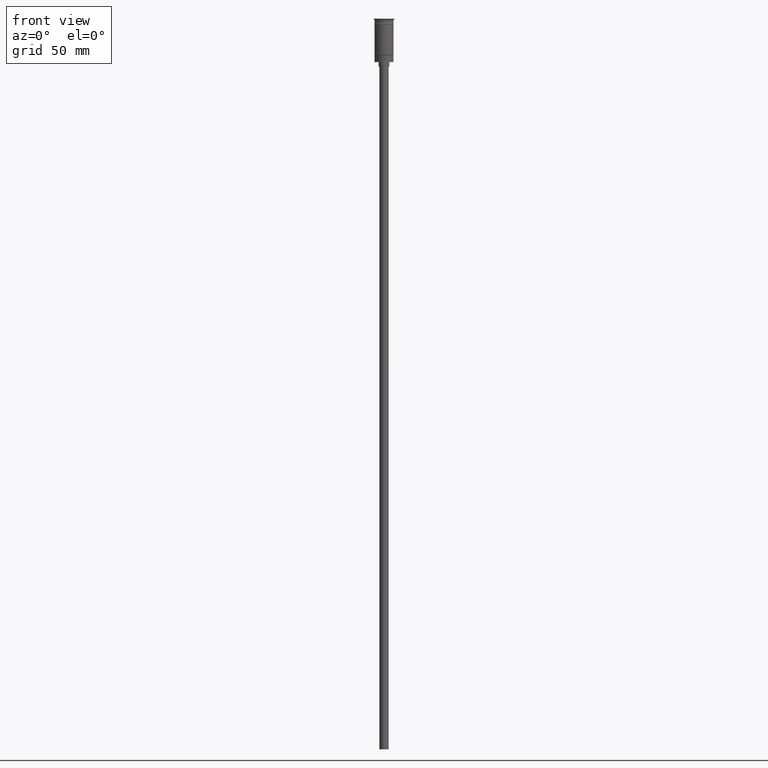
[diagram: clean part render]
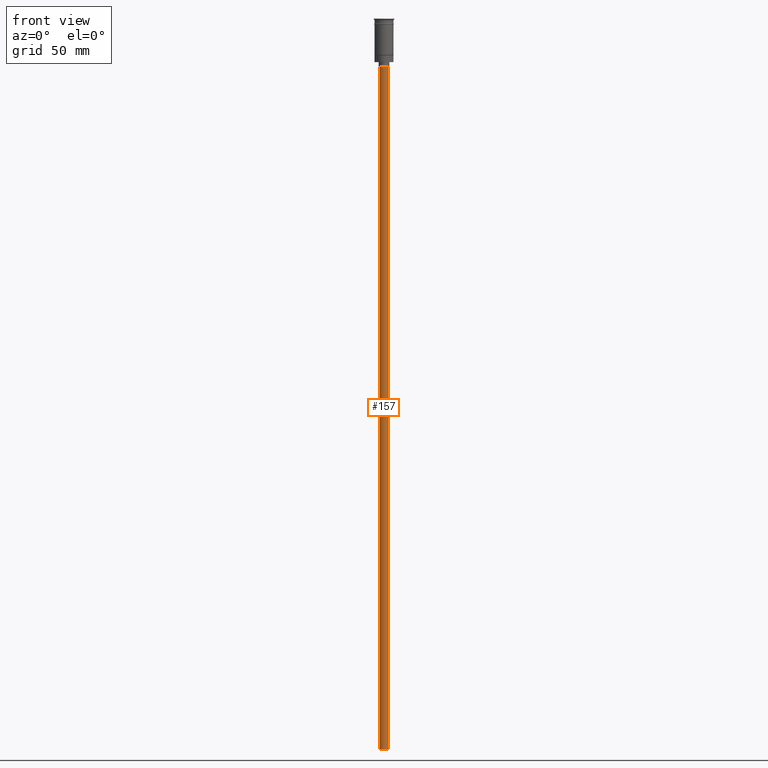
[diagram: same view with one face highlighted and labeled with its STEP entity id]
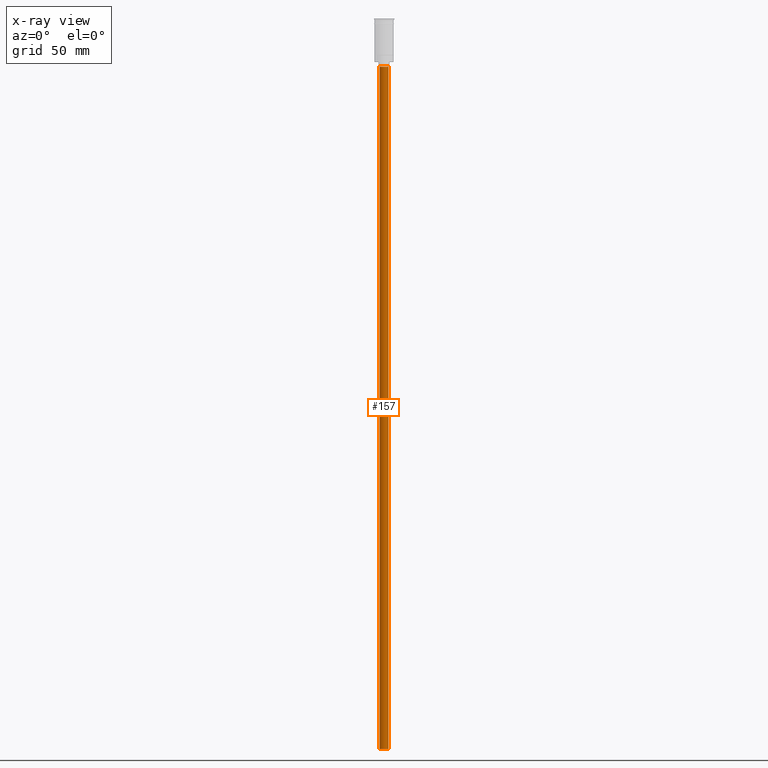
[diagram: x-ray of the same camera — body ghosted, the highlighted face saturated]
A machine part, front view. The second image highlights one B-rep face of the part: STEP entity #157.
The next image is the same camera in x-ray: the body ghosted, the highlighted face saturated — about 0% of this face is hidden behind the body in this view.
In plain terms, the highlighted cylindrical surface (edge-blend (fillet) strip) has radius 3 mm, axis along (-0, -0, 1).
Its self-contained STEP definition (entity closure, byte-faithful):
#8 = LINE ( 'NONE', #1015, #1259 ) ;
#32 = EDGE_CURVE ( 'NONE', #422, #378, #921, .T. ) ;
#157 = ADVANCED_FACE ( 'NONE', ( #893 ), #1145, .T. ) ;
#176 = VECTOR ( 'NONE', #993, 1000.000000000000000 ) ;
#177 = AXIS2_PLACEMENT_3D ( 'NONE', #1603, #349, #1595 ) ;
#216 = ORIENTED_EDGE ( 'NONE', *, *, #32, .F. ) ;
#252 = VERTEX_POINT ( 'NONE', #936 ) ;
#312 = ORIENTED_EDGE ( 'NONE', *, *, #611, .F. ) ;
#320 = DIRECTION ( 'NONE',  ( 0.000000000000000000, 0.000000000000000000, -1.000000000000000000 ) ) ;
#349 = DIRECTION ( 'NONE',  ( 0.000000000000000000, 0.000000000000000000, -1.000000000000000000 ) ) ;
#378 = VERTEX_POINT ( 'NONE', #462 ) ;
#403 = ORIENTED_EDGE ( 'NONE', *, *, #878, .T. ) ;
#422 = VERTEX_POINT ( 'NONE', #1338 ) ;
#433 = EDGE_LOOP ( 'NONE', ( #312, #216, #1041, #403 ) ) ;
#460 = VERTEX_POINT ( 'NONE', #1571 ) ;
#462 = CARTESIAN_POINT ( 'NONE',  ( -3.000000000000000444, 3.673940397442060361E-16, -478.5000000000000568 ) ) ;
#510 = LINE ( 'NONE', #1146, #176 ) ;
#592 = CIRCLE ( 'NONE', #1002, 3.000000000000000444 ) ;
#611 = EDGE_CURVE ( 'NONE', #378, #460, #8, .T. ) ;
#878 = EDGE_CURVE ( 'NONE', #252, #460, #592, .T. ) ;
#893 = FACE_OUTER_BOUND ( 'NONE', #433, .T. ) ;
#921 = CIRCLE ( 'NONE', #177, 3.000000000000000444 ) ;
#936 = CARTESIAN_POINT ( 'NONE',  ( 3.000000000000000444, 0.000000000000000000, -31.50000000000000000 ) ) ;
#993 = DIRECTION ( 'NONE',  ( -0.000000000000000000, -0.000000000000000000, 1.000000000000000000 ) ) ;
#1002 = AXIS2_PLACEMENT_3D ( 'NONE', #1187, #320, #1090 ) ;
#1015 = CARTESIAN_POINT ( 'NONE',  ( -3.000000000000000444, 3.673940397442060361E-16, -478.5000000000000568 ) ) ;
#1041 = ORIENTED_EDGE ( 'NONE', *, *, #1380, .T. ) ;
#1090 = DIRECTION ( 'NONE',  ( -1.000000000000000000, 0.000000000000000000, 0.000000000000000000 ) ) ;
#1145 = CYLINDRICAL_SURFACE ( 'NONE', #1449, 3.000000000000000444 ) ;
#1146 = CARTESIAN_POINT ( 'NONE',  ( 3.000000000000000444, 0.000000000000000000, -478.5000000000000568 ) ) ;
#1187 = CARTESIAN_POINT ( 'NONE',  ( 0.000000000000000000, 0.000000000000000000, -31.50000000000000000 ) ) ;
#1259 = VECTOR ( 'NONE', #1373, 1000.000000000000000 ) ;
#1269 = DIRECTION ( 'NONE',  ( 1.000000000000000000, 0.000000000000000000, 0.000000000000000000 ) ) ;
#1338 = CARTESIAN_POINT ( 'NONE',  ( 3.000000000000000444, 0.000000000000000000, -478.5000000000000568 ) ) ;
#1373 = DIRECTION ( 'NONE',  ( -0.000000000000000000, -0.000000000000000000, 1.000000000000000000 ) ) ;
#1380 = EDGE_CURVE ( 'NONE', #422, #252, #510, .T. ) ;
#1388 = CARTESIAN_POINT ( 'NONE',  ( 0.000000000000000000, 0.000000000000000000, -478.5000000000000568 ) ) ;
#1449 = AXIS2_PLACEMENT_3D ( 'NONE', #1388, #1510, #1269 ) ;
#1510 = DIRECTION ( 'NONE',  ( -0.000000000000000000, -0.000000000000000000, 1.000000000000000000 ) ) ;
#1571 = CARTESIAN_POINT ( 'NONE',  ( -3.000000000000000444, 3.673940397442060361E-16, -31.50000000000000000 ) ) ;
#1595 = DIRECTION ( 'NONE',  ( -1.000000000000000000, 0.000000000000000000, 0.000000000000000000 ) ) ;
#1603 = CARTESIAN_POINT ( 'NONE',  ( 0.000000000000000000, 0.000000000000000000, -478.5000000000000568 ) ) ;